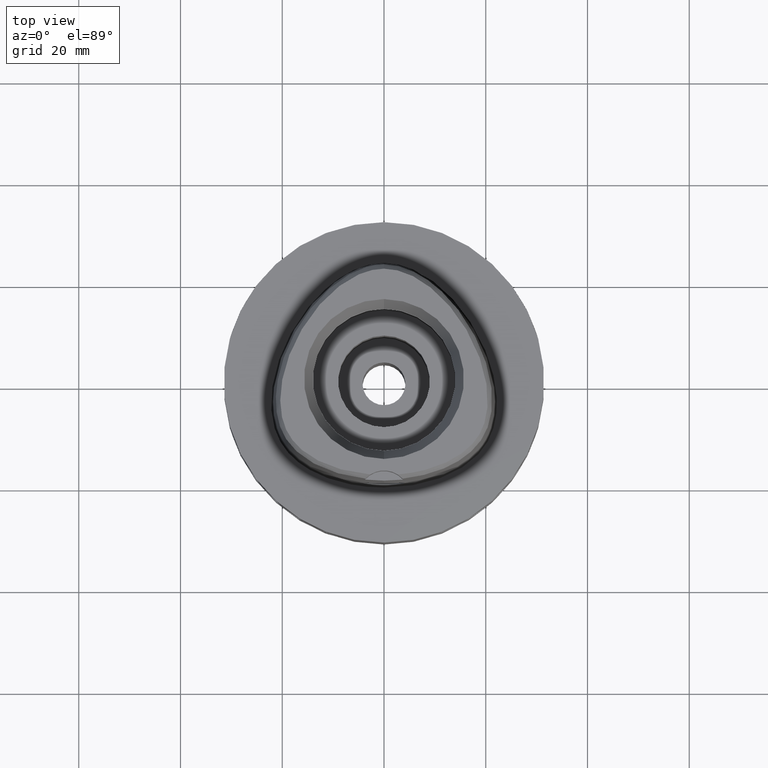
[diagram: clean part render]
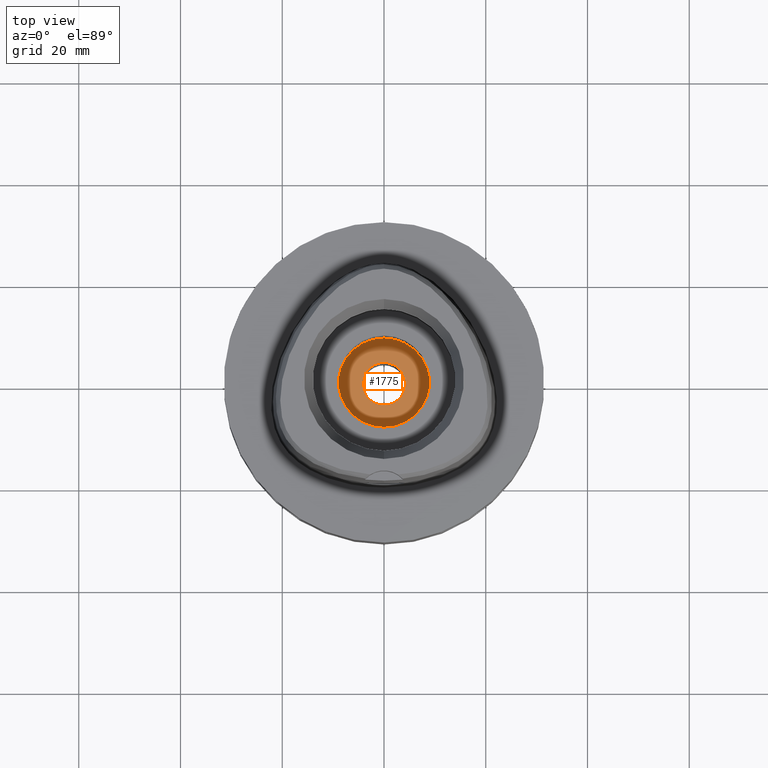
[diagram: same view with one face highlighted and labeled with its STEP entity id]
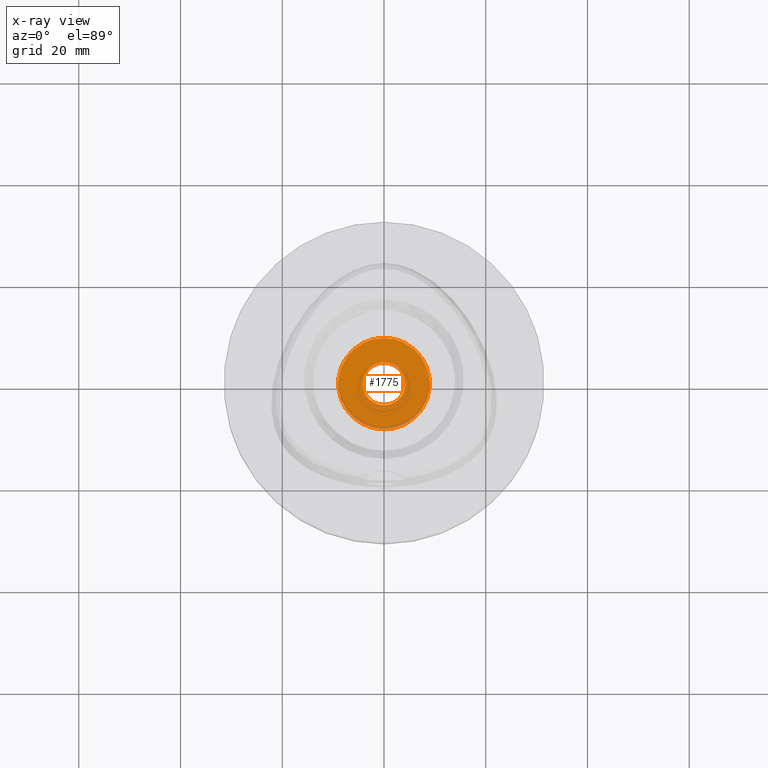
[diagram: x-ray of the same camera — body ghosted, the highlighted face saturated]
A machine part, top view. The second image highlights one B-rep face of the part: STEP entity #1775.
The next image is the same camera in x-ray: the body ghosted, the highlighted face saturated — about 4% of this face is hidden behind the body in this view.
In plain terms, the highlighted planar face has unit normal (0, 0, -1).
Its self-contained STEP definition (entity closure, byte-faithful):
#232 = VERTEX_POINT ( 'NONE', #3119 ) ;
#480 = AXIS2_PLACEMENT_3D ( 'NONE', #2562, #1831, #2638 ) ;
#506 = ORIENTED_EDGE ( 'NONE', *, *, #3230, .F. ) ;
#518 = EDGE_CURVE ( 'NONE', #1269, #232, #915, .T. ) ;
#543 = DIRECTION ( 'NONE',  ( 0.0000000000000000000, -1.000000000000000000, 0.0000000000000000000 ) ) ;
#864 = CIRCLE ( 'NONE', #2366, 4.200000000000000178 ) ;
#915 = CIRCLE ( 'NONE', #3252, 9.000000000000000000 ) ;
#1199 = DIRECTION ( 'NONE',  ( 0.0000000000000000000, 0.0000000000000000000, -1.000000000000000000 ) ) ;
#1269 = VERTEX_POINT ( 'NONE', #4382 ) ;
#1589 = CARTESIAN_POINT ( 'NONE',  ( 0.0000000000000000000, -4.200000000000000178, -16.00000000000000000 ) ) ;
#1665 = CARTESIAN_POINT ( 'NONE',  ( 0.0000000000000000000, 4.200000000000000178, -16.00000000000000000 ) ) ;
#1775 = ADVANCED_FACE ( 'NONE', ( #2236, #3711 ), #2258, .F. ) ;
#1831 = DIRECTION ( 'NONE',  ( 0.0000000000000000000, 0.0000000000000000000, -1.000000000000000000 ) ) ;
#1859 = ORIENTED_EDGE ( 'NONE', *, *, #2141, .F. ) ;
#1976 = DIRECTION ( 'NONE',  ( 0.0000000000000000000, 0.0000000000000000000, -1.000000000000000000 ) ) ;
#2096 = EDGE_LOOP ( 'NONE', ( #2955, #3844 ) ) ;
#2141 = EDGE_CURVE ( 'NONE', #2985, #3051, #4749, .T. ) ;
#2212 = CIRCLE ( 'NONE', #480, 9.000000000000000000 ) ;
#2236 = FACE_OUTER_BOUND ( 'NONE', #2096, .T. ) ;
#2258 = PLANE ( 'NONE',  #4446 ) ;
#2366 = AXIS2_PLACEMENT_3D ( 'NONE', #2492, #3257, #3556 ) ;
#2408 = EDGE_LOOP ( 'NONE', ( #1859, #506 ) ) ;
#2492 = CARTESIAN_POINT ( 'NONE',  ( 0.0000000000000000000, 0.0000000000000000000, -16.00000000000000000 ) ) ;
#2536 = CARTESIAN_POINT ( 'NONE',  ( 0.0000000000000000000, 0.0000000000000000000, -16.00000000000000000 ) ) ;
#2562 = CARTESIAN_POINT ( 'NONE',  ( 0.0000000000000000000, 0.0000000000000000000, -16.00000000000000000 ) ) ;
#2638 = DIRECTION ( 'NONE',  ( 0.0000000000000000000, 1.000000000000000000, 0.0000000000000000000 ) ) ;
#2955 = ORIENTED_EDGE ( 'NONE', *, *, #4169, .F. ) ;
#2985 = VERTEX_POINT ( 'NONE', #1665 ) ;
#3051 = VERTEX_POINT ( 'NONE', #1589 ) ;
#3119 = CARTESIAN_POINT ( 'NONE',  ( 0.0000000000000000000, 9.000000000000000000, -16.00000000000000000 ) ) ;
#3122 = AXIS2_PLACEMENT_3D ( 'NONE', #2536, #3278, #4769 ) ;
#3230 = EDGE_CURVE ( 'NONE', #3051, #2985, #864, .T. ) ;
#3252 = AXIS2_PLACEMENT_3D ( 'NONE', #3816, #1976, #543 ) ;
#3257 = DIRECTION ( 'NONE',  ( 0.0000000000000000000, 0.0000000000000000000, 1.000000000000000000 ) ) ;
#3278 = DIRECTION ( 'NONE',  ( 0.0000000000000000000, 0.0000000000000000000, 1.000000000000000000 ) ) ;
#3556 = DIRECTION ( 'NONE',  ( 0.0000000000000000000, -1.000000000000000000, 0.0000000000000000000 ) ) ;
#3711 = FACE_BOUND ( 'NONE', #2408, .T. ) ;
#3733 = DIRECTION ( 'NONE',  ( 0.0000000000000000000, -1.000000000000000000, 0.0000000000000000000 ) ) ;
#3816 = CARTESIAN_POINT ( 'NONE',  ( 0.0000000000000000000, 0.0000000000000000000, -16.00000000000000000 ) ) ;
#3844 = ORIENTED_EDGE ( 'NONE', *, *, #518, .F. ) ;
#4127 = CARTESIAN_POINT ( 'NONE',  ( 0.0000000000000000000, 0.0000000000000000000, -16.00000000000000000 ) ) ;
#4169 = EDGE_CURVE ( 'NONE', #232, #1269, #2212, .T. ) ;
#4382 = CARTESIAN_POINT ( 'NONE',  ( 0.0000000000000000000, -9.000000000000000000, -16.00000000000000000 ) ) ;
#4446 = AXIS2_PLACEMENT_3D ( 'NONE', #4127, #1199, #3733 ) ;
#4749 = CIRCLE ( 'NONE', #3122, 4.200000000000000178 ) ;
#4769 = DIRECTION ( 'NONE',  ( 0.0000000000000000000, 1.000000000000000000, 0.0000000000000000000 ) ) ;